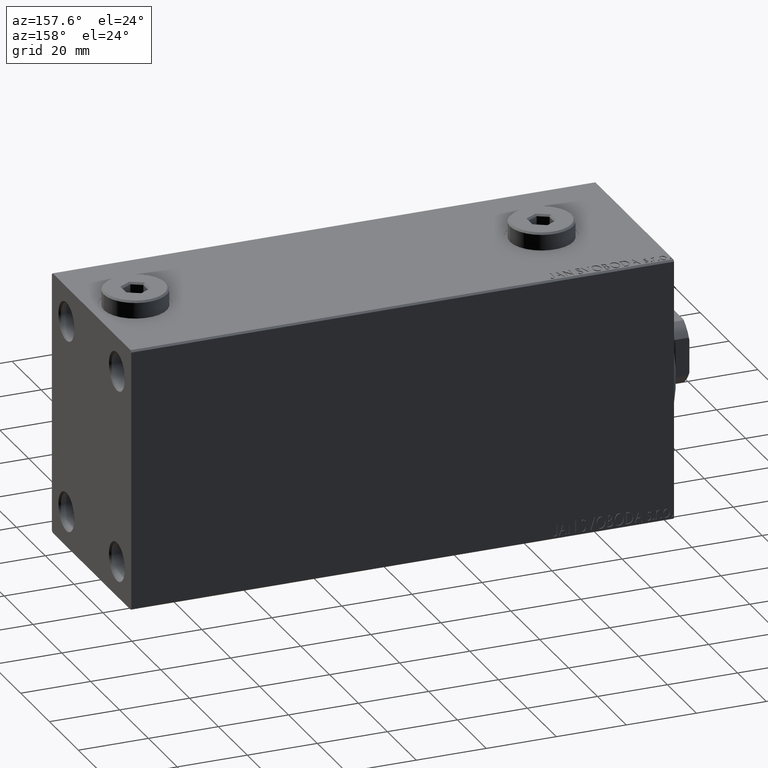
[diagram: clean part render]
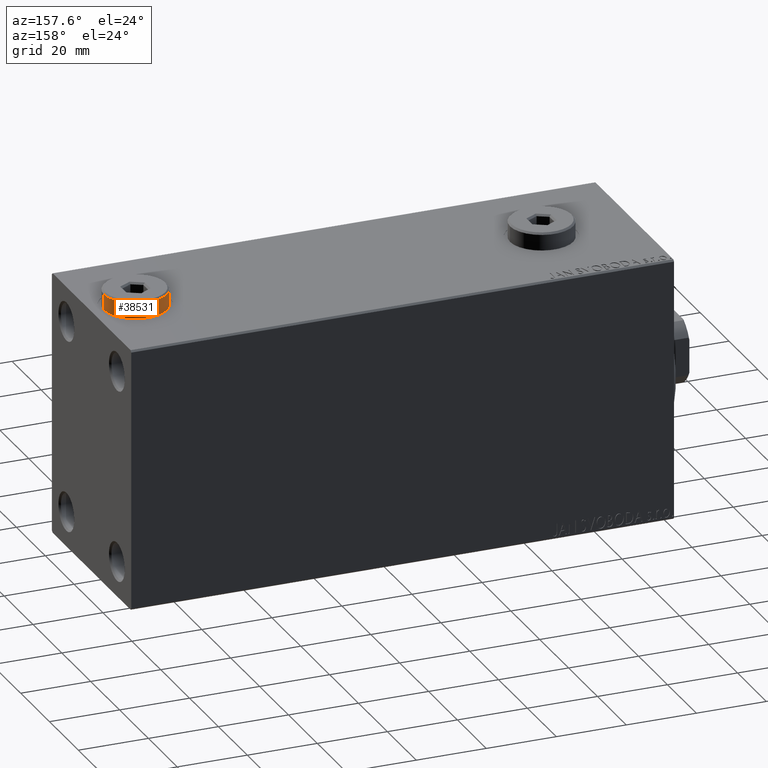
[diagram: same view with one face highlighted and labeled with its STEP entity id]
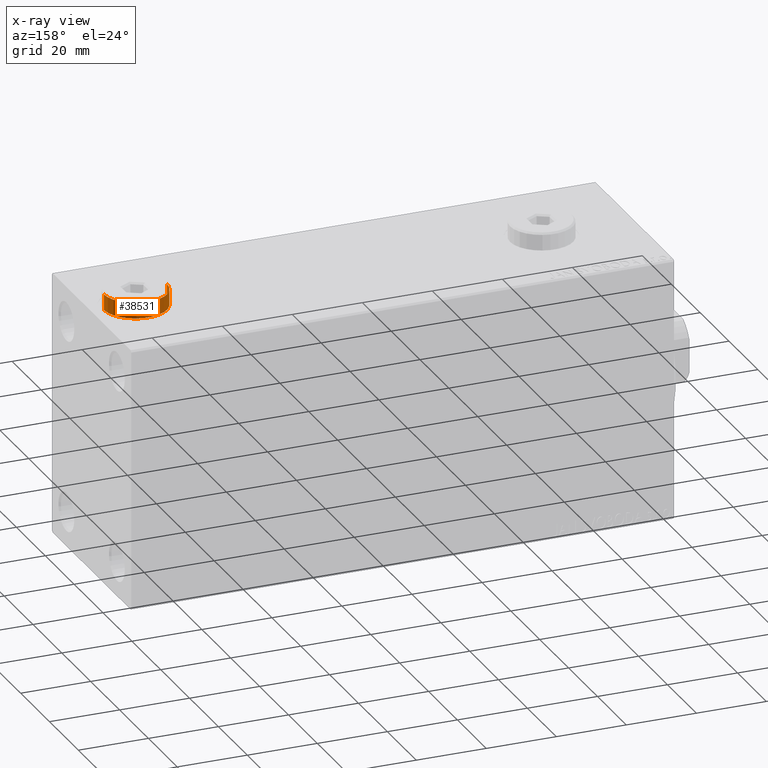
[diagram: x-ray of the same camera — body ghosted, the highlighted face saturated]
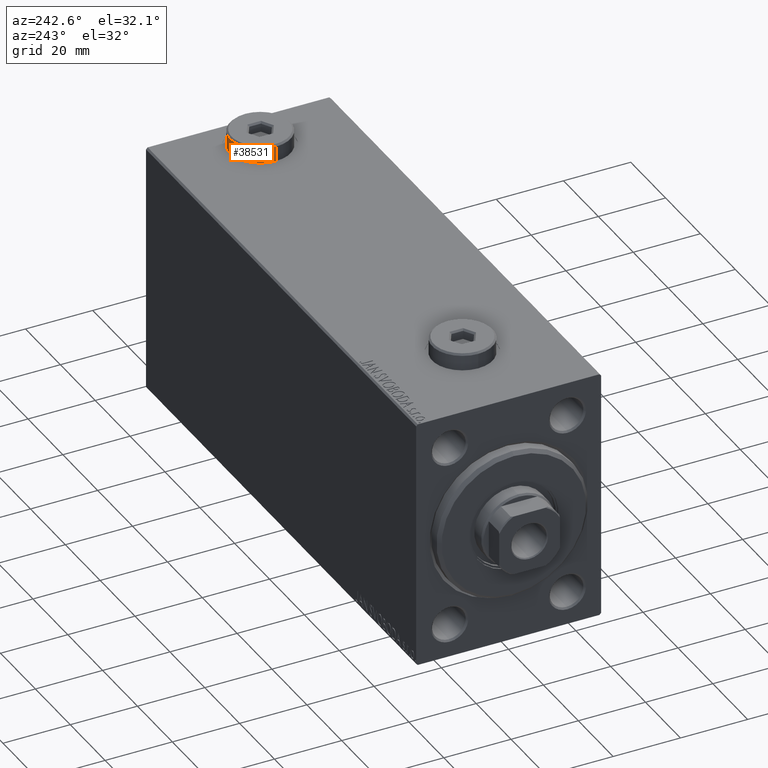
[diagram: same view with one face highlighted and labeled with its STEP entity id]
A machine part, auxiliary view. The second image highlights one B-rep face of the part: STEP entity #38531.
The next image is the same camera in x-ray: the body ghosted, the highlighted face saturated — about 0% of this face is hidden behind the body in this view.
A second angle (auxiliary view) of the same face is appended — the face is thin or edge-on in the first view.
In plain terms, the highlighted cylindrical surface (edge-blend (fillet) strip) has radius 9 mm, axis along (-0, -0, -1).
Its self-contained STEP definition (entity closure, byte-faithful):
#61 = CIRCLE ( 'NONE', #16243, 9.000000000000001776 ) ;
#313 = DIRECTION ( 'NONE',  ( 0.000000000000000000, 0.000000000000000000, -1.000000000000000000 ) ) ;
#892 = CARTESIAN_POINT ( 'NONE',  ( -9.000000000000001776, 0.000000000000000000, 5.000000000000000000 ) ) ;
#1072 = VERTEX_POINT ( 'NONE', #24649 ) ;
#1581 = LINE ( 'NONE', #892, #36788 ) ;
#2408 = CIRCLE ( 'NONE', #28156, 9.000000000000001776 ) ;
#3364 = DIRECTION ( 'NONE',  ( -1.000000000000000000, 0.000000000000000000, 0.000000000000000000 ) ) ;
#6393 = CARTESIAN_POINT ( 'NONE',  ( -9.000000000000001776, 0.000000000000000000, 0.000000000000000000 ) ) ;
#6706 = ORIENTED_EDGE ( 'NONE', *, *, #22990, .T. ) ;
#6811 = FACE_OUTER_BOUND ( 'NONE', #42032, .T. ) ;
#9033 = CARTESIAN_POINT ( 'NONE',  ( 9.000000000000001776, 1.102182119232617911E-15, 5.000000000000000000 ) ) ;
#9205 = VERTEX_POINT ( 'NONE', #42912 ) ;
#9804 = DIRECTION ( 'NONE',  ( 1.000000000000000000, 0.000000000000000000, 0.000000000000000000 ) ) ;
#10716 = CYLINDRICAL_SURFACE ( 'NONE', #11223, 9.000000000000001776 ) ;
#11223 = AXIS2_PLACEMENT_3D ( 'NONE', #42748, #32377, #3364 ) ;
#11493 = EDGE_CURVE ( 'NONE', #26676, #12625, #1581, .T. ) ;
#12625 = VERTEX_POINT ( 'NONE', #6393 ) ;
#14627 = EDGE_CURVE ( 'NONE', #9205, #12625, #61, .T. ) ;
#15960 = DIRECTION ( 'NONE',  ( -0.000000000000000000, -0.000000000000000000, -1.000000000000000000 ) ) ;
#16243 = AXIS2_PLACEMENT_3D ( 'NONE', #34473, #41388, #9804 ) ;
#19861 = LINE ( 'NONE', #9033, #45278 ) ;
#22990 = EDGE_CURVE ( 'NONE', #26676, #1072, #2408, .T. ) ;
#24347 = ORIENTED_EDGE ( 'NONE', *, *, #14627, .T. ) ;
#24649 = CARTESIAN_POINT ( 'NONE',  ( 9.000000000000001776, 1.102182119232617911E-15, 4.500000000000006217 ) ) ;
#24749 = DIRECTION ( 'NONE',  ( 1.000000000000000000, 0.000000000000000000, 0.000000000000000000 ) ) ;
#26323 = ORIENTED_EDGE ( 'NONE', *, *, #29371, .T. ) ;
#26676 = VERTEX_POINT ( 'NONE', #37175 ) ;
#28156 = AXIS2_PLACEMENT_3D ( 'NONE', #28194, #313, #24749 ) ;
#28194 = CARTESIAN_POINT ( 'NONE',  ( 0.000000000000000000, 0.000000000000000000, 4.500000000000006217 ) ) ;
#29371 = EDGE_CURVE ( 'NONE', #1072, #9205, #19861, .T. ) ;
#32377 = DIRECTION ( 'NONE',  ( -0.000000000000000000, -0.000000000000000000, -1.000000000000000000 ) ) ;
#34473 = CARTESIAN_POINT ( 'NONE',  ( 0.000000000000000000, 0.000000000000000000, 0.000000000000000000 ) ) ;
#36788 = VECTOR ( 'NONE', #39829, 1000.000000000000000 ) ;
#37175 = CARTESIAN_POINT ( 'NONE',  ( -9.000000000000001776, 0.000000000000000000, 4.500000000000006217 ) ) ;
#38531 = ADVANCED_FACE ( 'NONE', ( #6811 ), #10716, .T. ) ;
#39829 = DIRECTION ( 'NONE',  ( -0.000000000000000000, -0.000000000000000000, -1.000000000000000000 ) ) ;
#41388 = DIRECTION ( 'NONE',  ( 0.000000000000000000, 0.000000000000000000, 1.000000000000000000 ) ) ;
#42032 = EDGE_LOOP ( 'NONE', ( #6706, #26323, #24347, #43231 ) ) ;
#42748 = CARTESIAN_POINT ( 'NONE',  ( 0.000000000000000000, 0.000000000000000000, 5.000000000000000000 ) ) ;
#42912 = CARTESIAN_POINT ( 'NONE',  ( 9.000000000000001776, 1.102182119232617911E-15, 0.000000000000000000 ) ) ;
#43231 = ORIENTED_EDGE ( 'NONE', *, *, #11493, .F. ) ;
#45278 = VECTOR ( 'NONE', #15960, 1000.000000000000000 ) ;